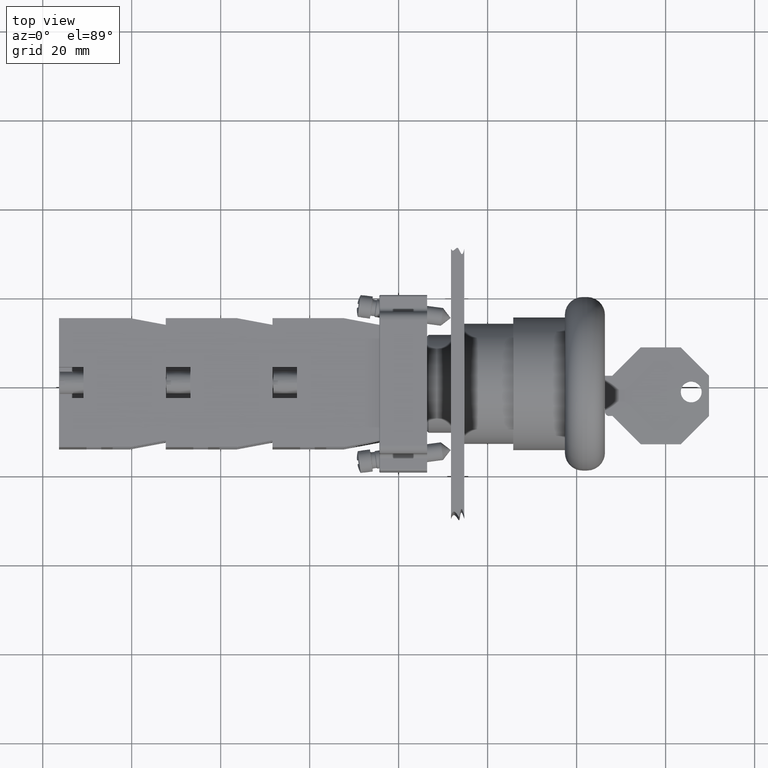
[diagram: clean part render]
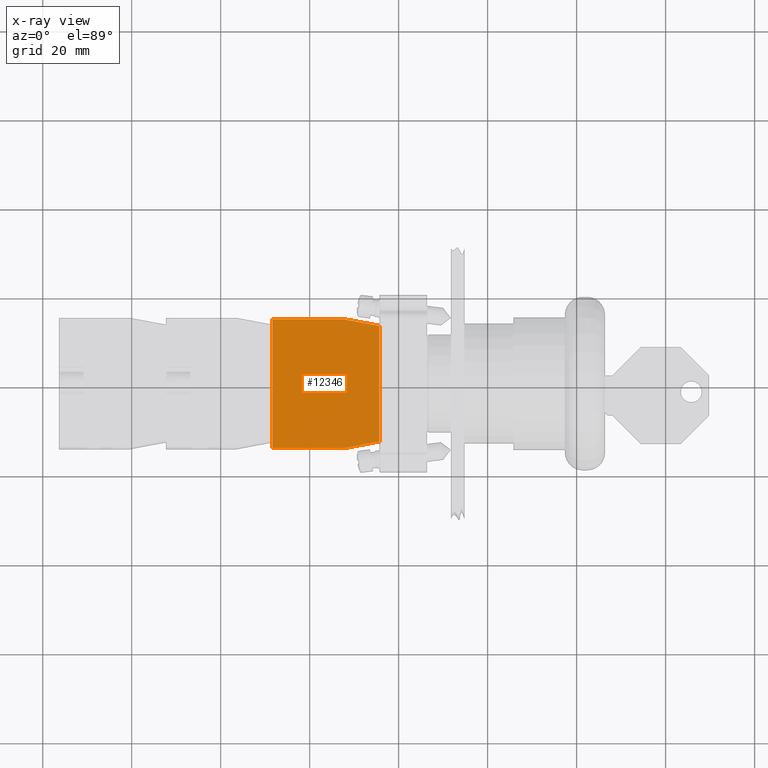
[diagram: x-ray — body ghosted, one internal face saturated and labeled with its STEP entity id]
A machine part, top view, then the same camera in x-ray: the body is ghosted and one INTERNAL B-rep face — a face not visible from any outside direction — is saturated and labeled: STEP entity #12346.
In plain terms, the highlighted planar face has unit normal (0, 0, -1).
Its self-contained STEP definition (entity closure, byte-faithful):
#10651=CARTESIAN_POINT('',(-44.936741828918471,23.797073323279623,0.0));
#10652=VERTEX_POINT('',#10651);
#10659=CARTESIAN_POINT('',(-44.936741828918457,7.797073323279626,0.0));
#10660=VERTEX_POINT('',#10659);
#10661=CARTESIAN_POINT('',(-44.936741828918457,7.797073323279626,0.0));
#10662=DIRECTION('',(0.0,1.0,0.0));
#10663=VECTOR('',#10662,15.999999999999996);
#10664=LINE('',#10661,#10663);
#10665=EDGE_CURVE('',#10660,#10652,#10664,.T.);
#10842=CARTESIAN_POINT('',(-43.436741828918457,-0.202926676720380,0.0));
#10843=VERTEX_POINT('',#10842);
#10850=CARTESIAN_POINT('',(-17.436741828918457,-0.202926676720377,0.0));
#10851=VERTEX_POINT('',#10850);
#10852=CARTESIAN_POINT('',(-17.436741828918457,-0.202926676720377,0.0));
#10853=DIRECTION('',(-1.0,0.0,0.0));
#10854=VECTOR('',#10853,26.0);
#10855=LINE('',#10852,#10854);
#10856=EDGE_CURVE('',#10851,#10843,#10855,.T.);
#12200=CARTESIAN_POINT('',(-15.936741828918466,23.797073323279626,0.0));
#12201=VERTEX_POINT('',#12200);
#12208=CARTESIAN_POINT('',(-44.936741828918471,23.797073323279623,0.0));
#12209=DIRECTION('',(1.0,0.0,0.0));
#12210=VECTOR('',#12209,29.000000000000007);
#12211=LINE('',#12208,#12210);
#12212=EDGE_CURVE('',#10652,#12201,#12211,.T.);
#12248=CARTESIAN_POINT('',(-15.936741828918466,7.797073323279626,0.0));
#12249=VERTEX_POINT('',#12248);
#12256=CARTESIAN_POINT('',(-15.936741828918466,23.797073323279626,0.0));
#12257=DIRECTION('',(0.0,-1.0,0.0));
#12258=VECTOR('',#12257,16.0);
#12259=LINE('',#12256,#12258);
#12260=EDGE_CURVE('',#12201,#12249,#12259,.T.);
#12288=CARTESIAN_POINT('',(-15.936741828918466,7.797073323279626,0.0));
#12289=DIRECTION('',(-0.184288535050184,-0.982872186934322,0.0));
#12290=VECTOR('',#12289,8.139410298049855);
#12291=LINE('',#12288,#12290);
#12292=EDGE_CURVE('',#12249,#10851,#12291,.T.);
#12305=CARTESIAN_POINT('',(-43.436741828918457,-0.202926676720380,0.0));
#12306=DIRECTION('',(-0.184288535050185,0.982872186934322,0.0));
#12307=VECTOR('',#12306,8.139410298049860);
#12308=LINE('',#12305,#12307);
#12309=EDGE_CURVE('',#10843,#10660,#12308,.T.);
#12333=CARTESIAN_POINT('',(-30.436741828918464,12.124046801833057,0.0));
#12334=DIRECTION('',(0.0,0.0,1.0));
#12335=DIRECTION('',(1.0,0.0,0.0));
#12336=AXIS2_PLACEMENT_3D('',#12333,#12334,#12335);
#12337=PLANE('',#12336);
#12338=ORIENTED_EDGE('',*,*,#12212,.T.);
#12339=ORIENTED_EDGE('',*,*,#12260,.T.);
#12340=ORIENTED_EDGE('',*,*,#12292,.T.);
#12341=ORIENTED_EDGE('',*,*,#10856,.T.);
#12342=ORIENTED_EDGE('',*,*,#12309,.T.);
#12343=ORIENTED_EDGE('',*,*,#10665,.T.);
#12344=EDGE_LOOP('',(#12338,#12339,#12340,#12341,#12342,#12343));
#12345=FACE_OUTER_BOUND('',#12344,.T.);
#12346=ADVANCED_FACE('',(#12345),#12337,.F.);